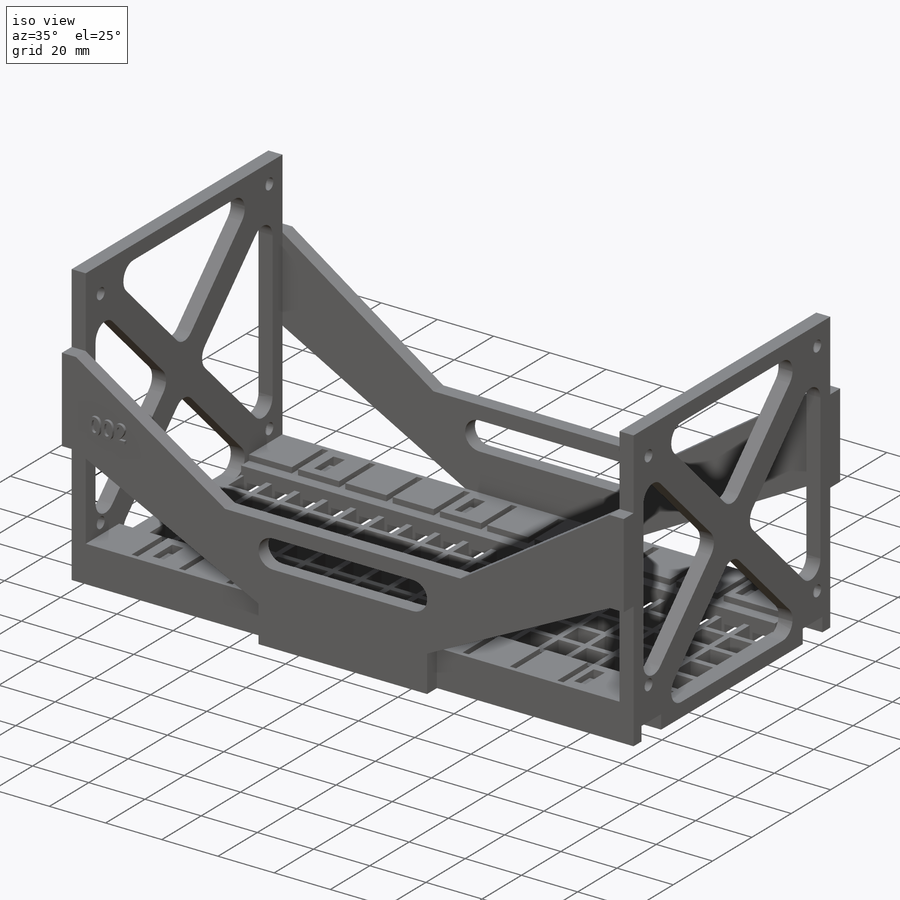
[diagram: iso view]
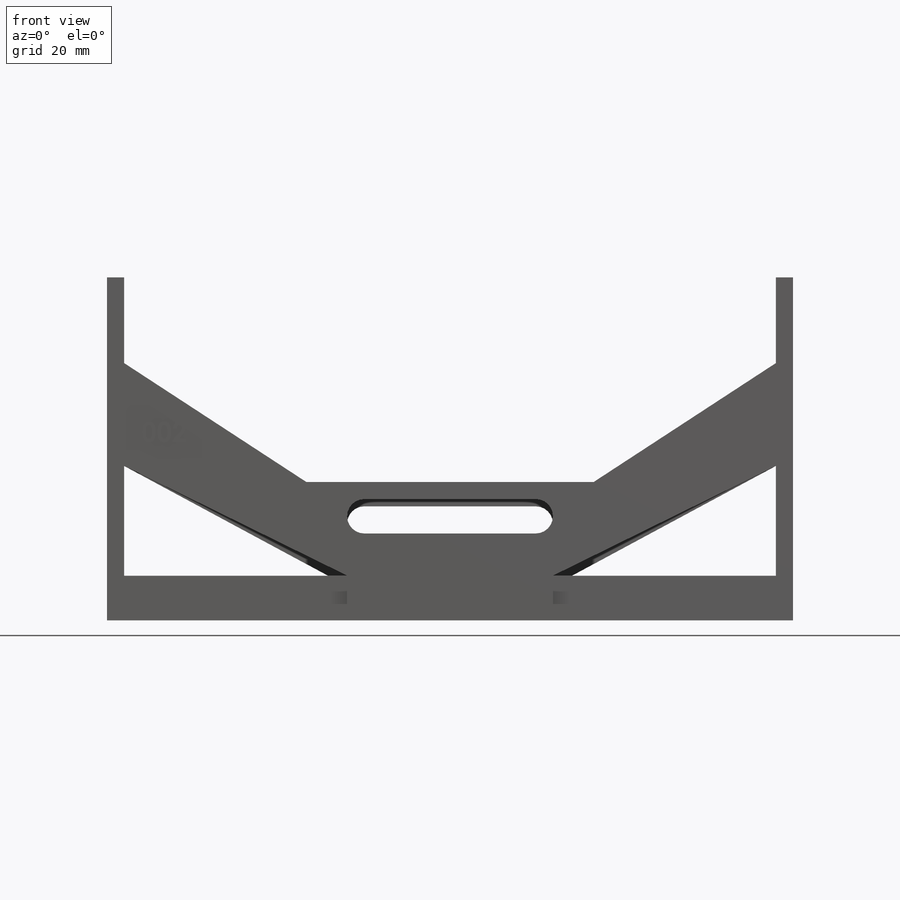
[diagram: front view]
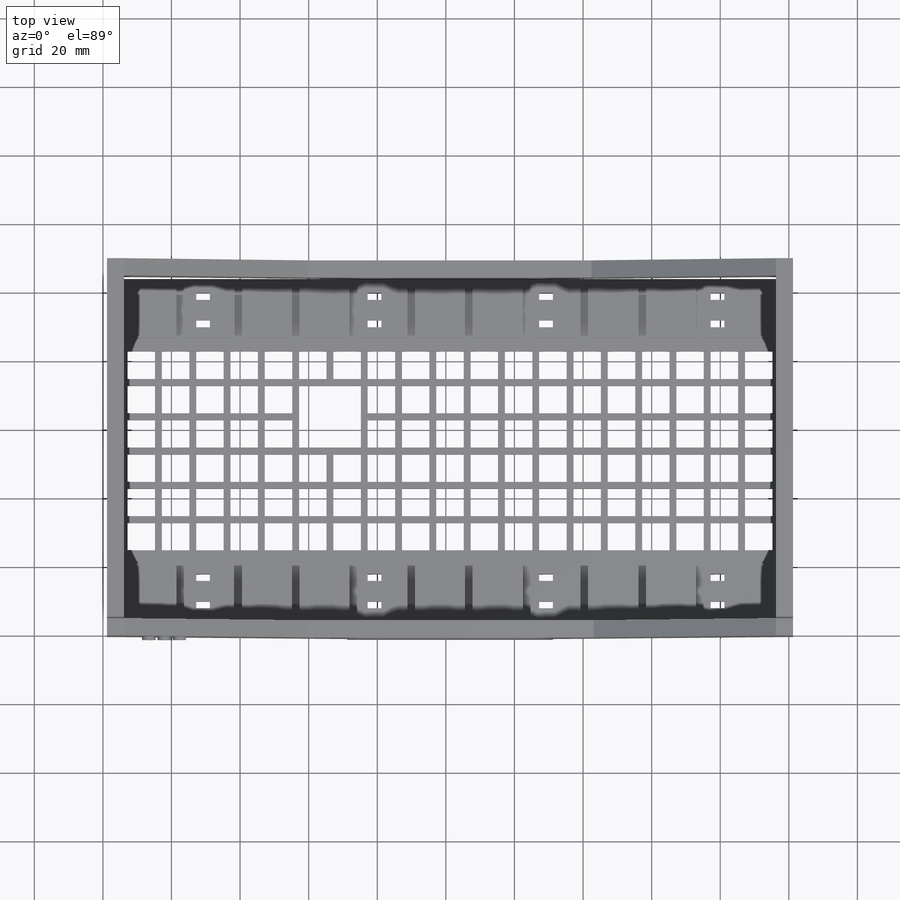
[diagram: top view]
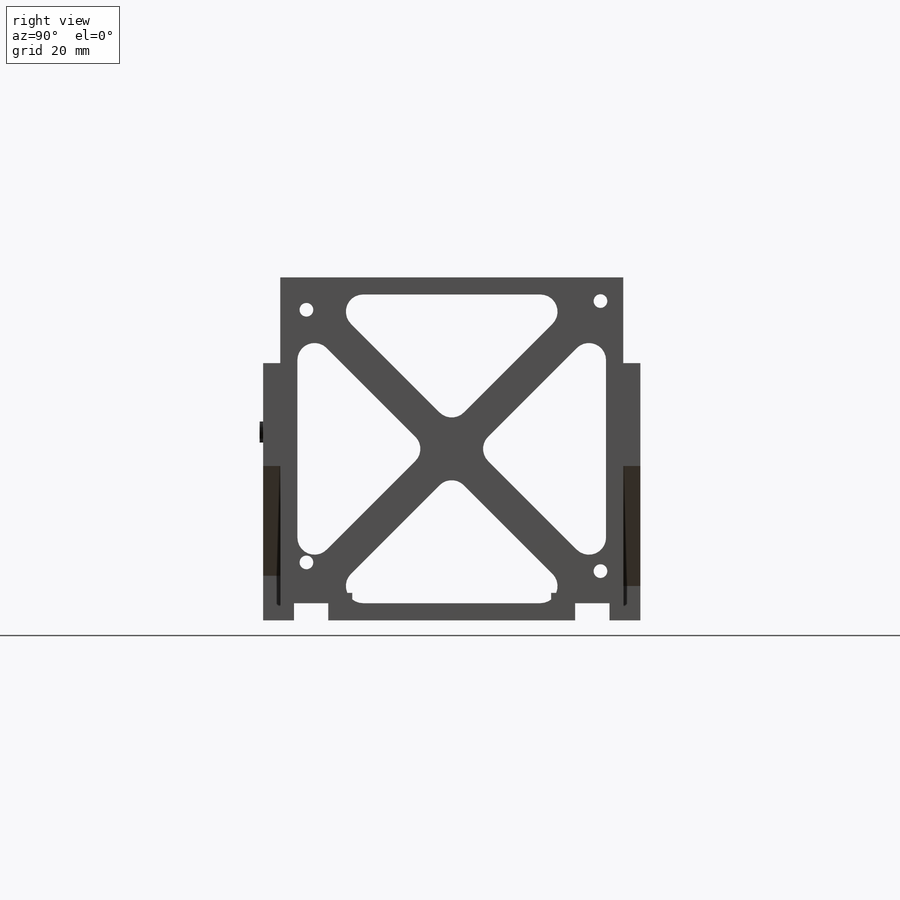
[diagram: right view]
SOLIDWORKS PART (.sldprt)
format: sldprt  version: not decoded by parser v0  size: 2,385,920 bytes
history: native  units: mm
features: sketch x37, cut_extrude x18, extrude x7, material x1 (+14 scaffold rows collapsed; 2 parser-record rows omitted)
feature tree (79):
  scaffold x14  (default folders/planes/origin — collapsed)
  material  "ABS"
  sketch  "Sketch2"  dims[D1=100.0mm D2=200.0mm]
  extrude  "Base 2U Cube"  Depth=100mm
  sketch  "Sketch3"  dims[D1=100.0mm D2=190.0mm D3=5.0mm]
  cut_extrude  "Cut-Extrude2"  Depth=95mm
  sketch  "Sketch5"  dims[D2=5.0mm D1=5.0mm D3=4.0]
  cut_extrude  "End Cutouts"  [1 undecoded]
  sketch  "Sketch6"  dims[D1=17.0mm D2=17.0mm]
  extrude  "Boss-Extrude2"  Depth=8mm
  sketch  "Sketch11"  dims[D1=15.45mm D2=15.45mm D3=2.2mm D4=2.2mm D5=15.24mm D6=15.25mm D7=11.0]
  cut_extrude  "Cut-Extrude3"  Depth=5mm
  sketch  "Sketch12"
  cut_extrude  "Cut-Extrude5"  Depth=3mm
  parser-record x2  (decoder bookkeeping rows leaked as tree rows — omitted from the tree; the rows remain in map.json)
  sketch  "Sketch15"  dims[D1=30.0mm D2=25.0mm D3=30.0mm D4=25.0mm D5=60.0mm D6=70.0mm]
  extrude  "Boss-Extrude4"  Depth=5mm
  sketch  "Sketch18"
  sketch  "Sketch19"  dims[D1=30.0mm D2=5.0mm]
  sketch  "Sketch20"
  sketch  "Sketch21"
  sketch  "Sketch22"  dims[D1=50.0mm]
  sketch  "Sketch23"  dims[D1=50.0mm]
  sketch  "Sketch24"  dims[D1=30.0mm D2=25.0mm D3=60.0mm D4=70.0mm D5=30.0mm D6=25.0mm]
  extrude  "Boss-Extrude5"  Depth=5mm
  sketch  "Sketch25"
  sketch  "Sketch26"  dims[D1=30.0mm D2=5.0mm]
  sketch  "Sketch27"  dims[c1.D1=30.0mm c1.D2=~6.022264mm c2.D2=90.0deg c3.D2=5.0mm]
  sketch  "Sketch28"  dims[D1=30.0mm D2=5.0mm]
  sketch  "Sketch29"  dims[D1=50.0mm]
  sketch  "Sketch30"  dims[D1=50.0mm]
  sketch  "Sketch31"  dims[D1=1.0mm D2=4.0mm D3=8.0mm D4=8.0mm D5=19.0 D6=6.0]
  cut_extrude  "Cut-Extrude6"  [1 undecoded]
  sketch  "Sketch32"  dims[D1=10.0mm D2=10.0mm D3=0.0mm D4=50.0mm]
  cut_extrude  "Cut-Extrude7"  [1 undecoded]
  sketch  "Sketch33"  dims[D1=50.0mm D2=0.0mm D3=10.0mm D4=10.0mm]
  cut_extrude  "Cut-Extrude8"  [1 undecoded]
  sketch  "Sketch34"  dims[D1=4.0mm D2=10.0mm D3=10.0mm D4=4.0mm]
  cut_extrude  "Cut-Extrude11"  Depth=5mm
  sketch  "Sketch37"  dims[D1=6.0mm D2=1.0mm D3=19.0]
  cut_extrude  "Cut-Extrude12"  Depth=3mm
  sketch  "Sketch38"  dims[D1=6.0mm D2=1.0mm D3=19.0]
  cut_extrude  "Cut-Extrude13"  Depth=3mm
  sketch  "Sketch39"  dims[D1=190.0mm]
  extrude  "Boss-Extrude6"  Depth=3mm
  sketch  "Sketch40"  dims[D1=190.0mm]
  extrude  "Boss-Extrude7"  Depth=3mm
  sketch  "Sketch41"  dims[D1=4.0mm D2=2.0mm D3=20.0mm D4=4.0mm D5=2.0mm D6=4.0]
  cut_extrude  "Z- Cable Tie Slots"  [1 undecoded]
  sketch  "Sketch42"  dims[D1=4.0mm D2=2.0mm D3=20.0mm D4=4.0mm D5=2.0mm D6=4.0]
  cut_extrude  "Z+ Cable Tie Slots"  [1 undecoded]
  sketch  "Sketch43"  dims[D1=4.0]
  cut_extrude  "Cut-Extrude17"  Depth=2mm
  sketch  "Sketch44"  dims[D1=4.0]
  cut_extrude  "Cut-Extrude18"  Depth=2mm
  sketch  "Sketch45"  dims[D2=4.0mm D5=4.0mm D9=4.0mm D10=4.0mm D1=6.35mm D3=5.08mm D4=85.09mm D6=5.08mm D7=90.81mm D8=8.89mm D11=90.81mm D12=82.55mm]
  cut_extrude  "Cut-Extrude19"  [1 undecoded]
  sketch  "Sketch46"  dims[D1=7.0mm D2=10.0mm]
  extrude  "VersionNumber"  Depth=1mm
  sketch  "Sketch47"
  cut_extrude  "Cut-Extrude20"  [1 undecoded]
  sketch  "Sketch48"
  cut_extrude  "Cut-Extrude21"  Depth=10mm
  sketch  "Sketch49"
  cut_extrude  "Cut-Extrude22"  [1 undecoded]
decode coverage: 45 of 62 modeling features carry decoded parameters
note: ~ marks probable driven/reference dimensions
note: 9 parameter values undecoded
summary: no parameter record found for 9 features
note: suppression state not decoded; provenance and decode notes live in map.json
